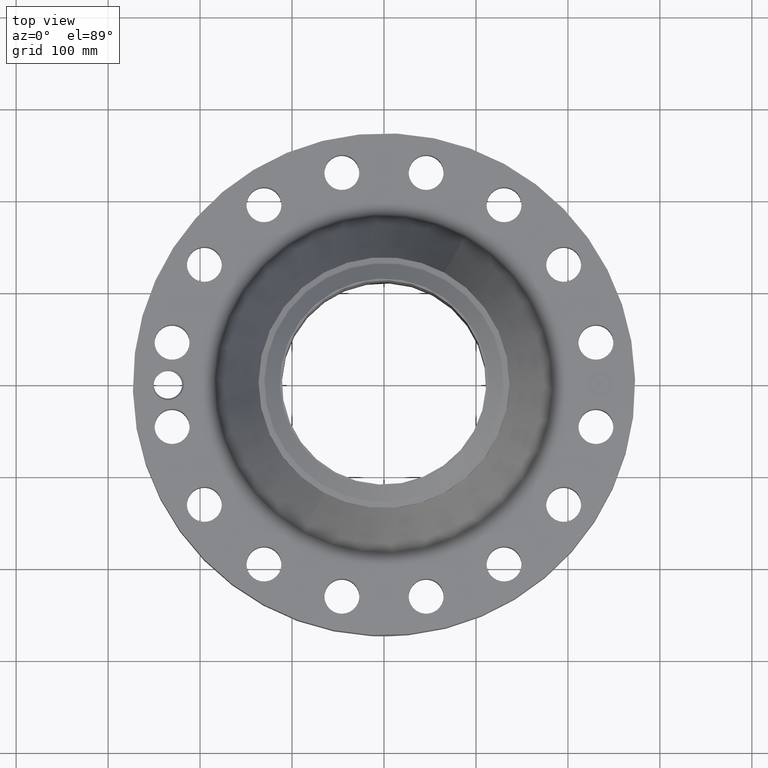
[diagram: clean part render]
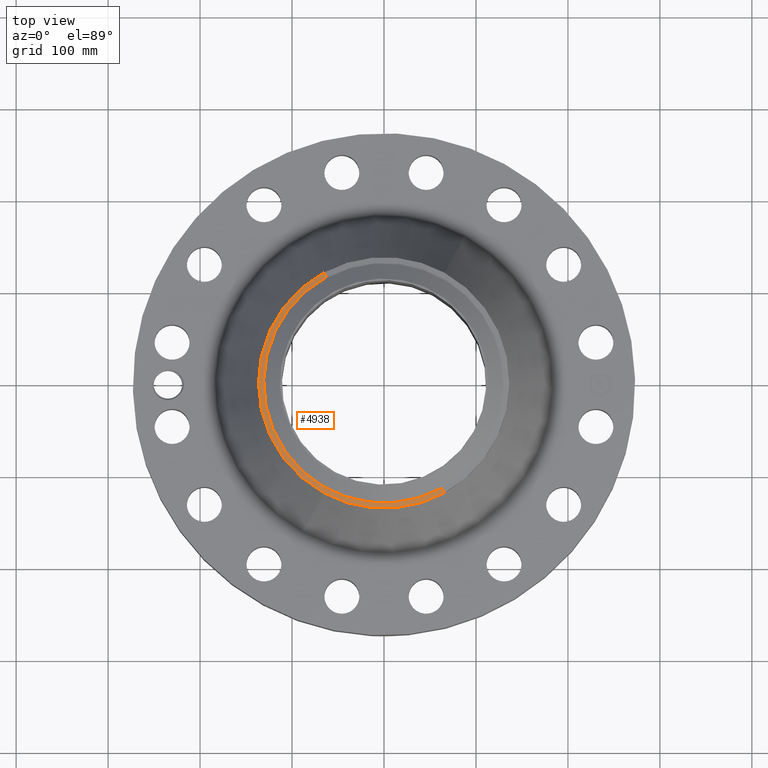
[diagram: same view with one face highlighted and labeled with its STEP entity id]
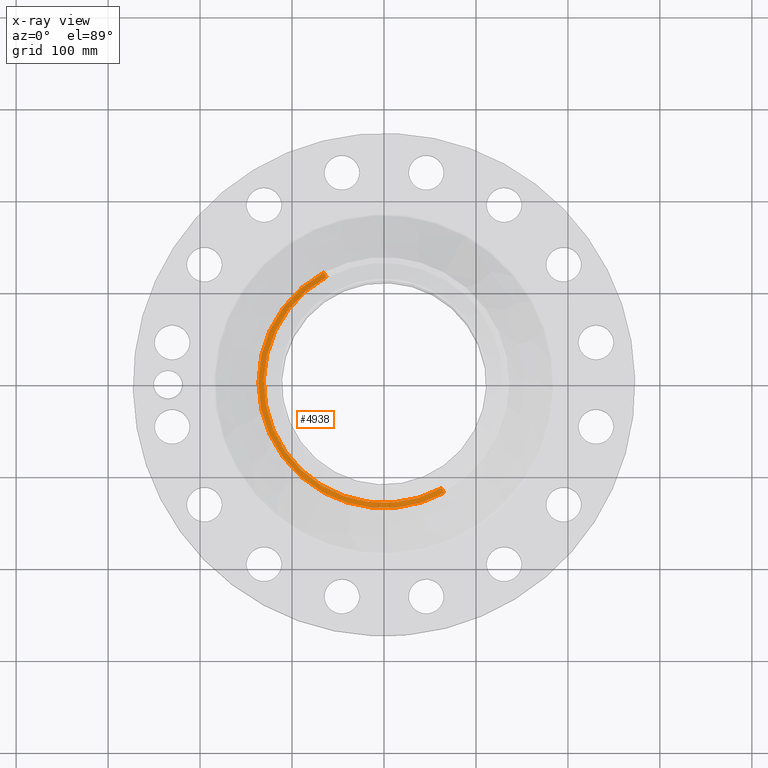
[diagram: x-ray of the same camera — body ghosted, the highlighted face saturated]
A machine part, top view. The second image highlights one B-rep face of the part: STEP entity #4938.
The next image is the same camera in x-ray: the body ghosted, the highlighted face saturated — about 0% of this face is hidden behind the body in this view.
In plain terms, the highlighted conical surface has half-angle 80 deg.
Its self-contained STEP definition (entity closure, byte-faithful):
#3732=AXIS2_PLACEMENT_3D('Circle Axis2P3D',#3730,#3731,$) ;
#3745=AXIS2_PLACEMENT_3D('Circle Axis2P3D',#3743,#3744,$) ;
#4897=AXIS2_PLACEMENT_3D('Cone Axis2P3D',#4894,#4895,#4896) ;
#4928=AXIS2_PLACEMENT_3D('Circle Axis2P3D',#4926,#4927,$) ;
#3713=CARTESIAN_POINT('Vertex',(-2.57691227001,-4.71700627018,6.94200584758)) ;
#3727=CARTESIAN_POINT('Vertex',(2.57691227001,-4.71700627018,6.94200584758)) ;
#3730=CARTESIAN_POINT('Axis2P3D Location',(0.,0.,6.94200584758)) ;
#3743=CARTESIAN_POINT('Axis2P3D Location',(0.,0.,6.94200584758)) ;
#3747=CARTESIAN_POINT('Vertex',(-2.57691227001,4.71700627018,6.94200584758)) ;
#4894=CARTESIAN_POINT('Axis2P3D Location',(0.,0.,6.98141601925)) ;
#4899=CARTESIAN_POINT('Line Origine',(-2.52333498223,4.61893370274,6.96171093341)) ;
#4903=CARTESIAN_POINT('Vertex',(-2.46975769445,4.52086113529,6.98141601925)) ;
#4910=CARTESIAN_POINT('Vertex',(2.46975769445,-4.52086113529,6.98141601925)) ;
#4913=CARTESIAN_POINT('Line Origine',(2.52333498223,-4.61893370274,6.96171093341)) ;
#4926=CARTESIAN_POINT('Axis2P3D Location',(0.,0.,6.98141601925)) ;
#3731=DIRECTION('Axis2P3D Direction',(0.,0.,-0.0393700787402)) ;
#3744=DIRECTION('Axis2P3D Direction',(0.,0.,-0.0393700787402)) ;
#4895=DIRECTION('Axis2P3D Direction',(-0.,-0.,-0.0393700787402)) ;
#4896=DIRECTION('Axis2P3D XDirection',(0.0188750212049,-0.0345504945626,0.)) ;
#4900=DIRECTION('Vector Direction',(-0.0185882672208,0.0340255949157,-0.00683654242783)) ;
#4914=DIRECTION('Vector Direction',(0.0185882672208,-0.0340255949157,-0.00683654242783)) ;
#4927=DIRECTION('Axis2P3D Direction',(0.,0.,-0.0393700787402)) ;
#4901=VECTOR('Line Direction',#4900,0.0393700787402) ;
#4915=VECTOR('Line Direction',#4914,0.0393700787402) ;
#4932=ORIENTED_EDGE('',*,*,#4917,.F.) ;
#4933=ORIENTED_EDGE('',*,*,#4930,.F.) ;
#4934=ORIENTED_EDGE('',*,*,#4905,.T.) ;
#4935=ORIENTED_EDGE('',*,*,#3749,.T.) ;
#4936=ORIENTED_EDGE('',*,*,#3734,.F.) ;
#4938=ADVANCED_FACE('PartBody',(#4937),#4898,.T.) ;
#3733=CIRCLE('generated circle',#3732,5.37500000002) ;
#3746=CIRCLE('generated circle',#3745,5.37500000002) ;
#4929=CIRCLE('generated circle',#4928,5.15149380994) ;
#4898=CONICAL_SURFACE('Cone',#4897,5.15149380994,1.3962634016) ;
#3734=EDGE_CURVE('',#3728,#3714,#3733,.T.) ;
#3749=EDGE_CURVE('',#3748,#3714,#3746,.F.) ;
#4905=EDGE_CURVE('',#4904,#3748,#4902,.T.) ;
#4917=EDGE_CURVE('',#4911,#3728,#4916,.T.) ;
#4930=EDGE_CURVE('',#4904,#4911,#4929,.F.) ;
#4931=EDGE_LOOP('',(#4932,#4933,#4934,#4935,#4936)) ;
#4937=FACE_OUTER_BOUND('',#4931,.T.) ;
#4902=LINE('Line',#4899,#4901) ;
#4916=LINE('Line',#4913,#4915) ;
#3714=VERTEX_POINT('',#3713) ;
#3728=VERTEX_POINT('',#3727) ;
#3748=VERTEX_POINT('',#3747) ;
#4904=VERTEX_POINT('',#4903) ;
#4911=VERTEX_POINT('',#4910) ;